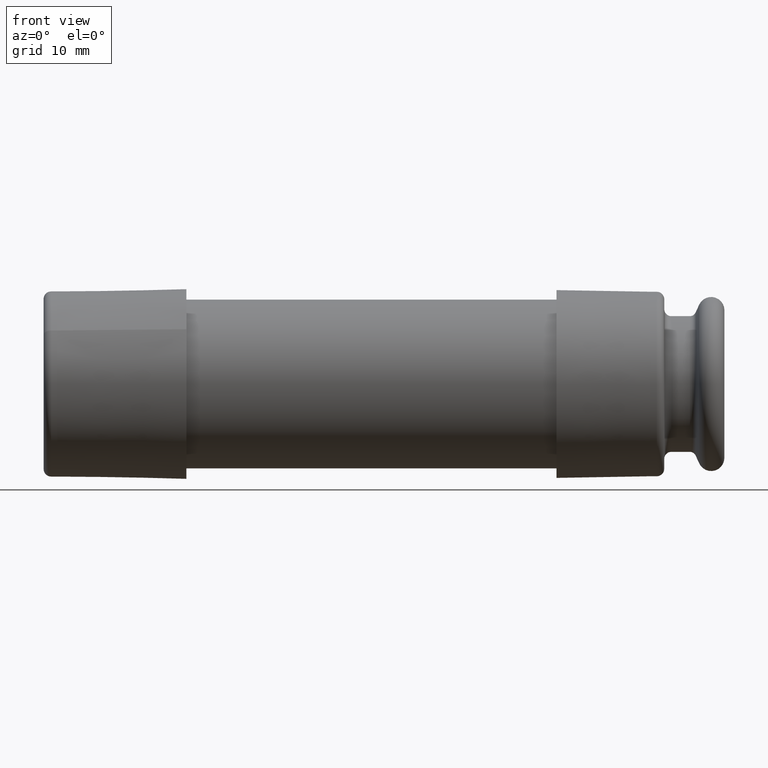
[diagram: clean part render]
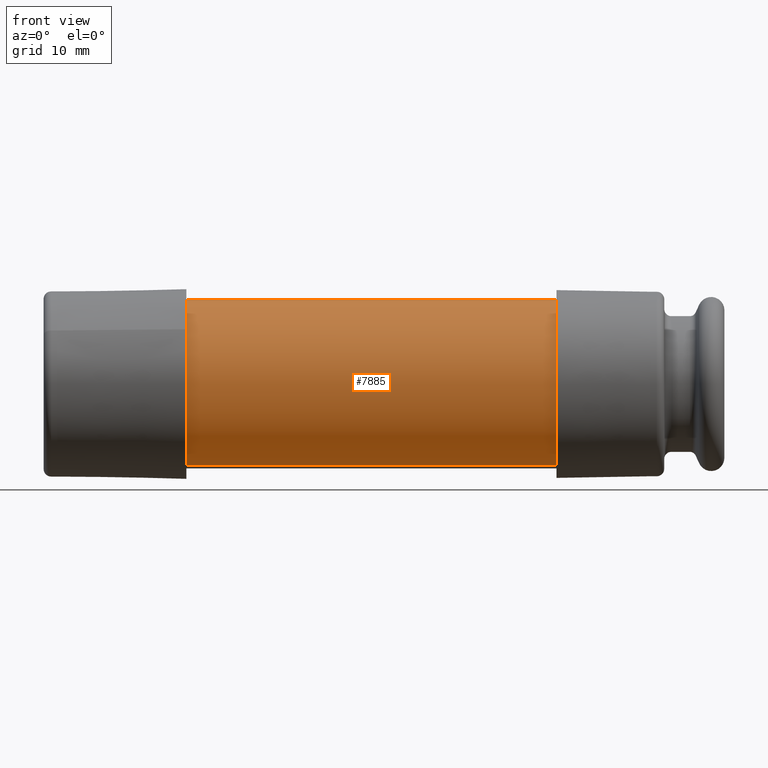
[diagram: same view with one face highlighted and labeled with its STEP entity id]
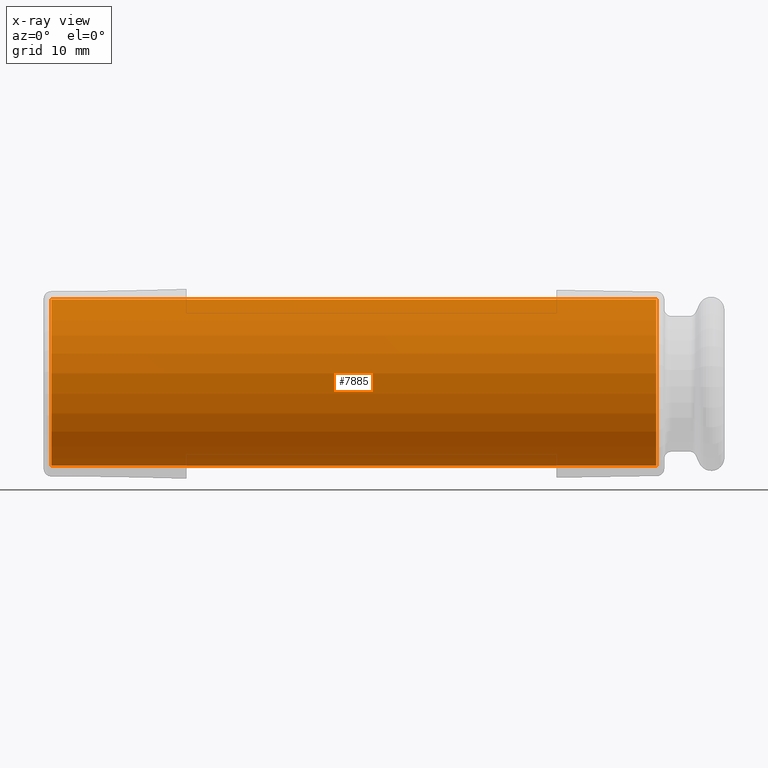
[diagram: x-ray of the same camera — body ghosted, the highlighted face saturated]
A machine part, front view. The second image highlights one B-rep face of the part: STEP entity #7885.
The next image is the same camera in x-ray: the body ghosted, the highlighted face saturated — about 0% of this face is hidden behind the body in this view.
In plain terms, the highlighted cylindrical surface (partial cylindrical patch) has radius 9.4488 mm, axis along (1, 0, -0).
Its self-contained STEP definition (entity closure, byte-faithful):
#63 = EDGE_LOOP ( 'NONE', ( #12054, #12111, #5955, #10532 ) ) ;
#562 = EDGE_CURVE ( 'NONE', #8559, #10121, #1856, .T. ) ;
#740 = VERTEX_POINT ( 'NONE', #11358 ) ;
#1294 = DIRECTION ( 'NONE',  ( -1.000000000000000000, -1.700911416085008300E-016, 6.808368128483539900E-017 ) ) ;
#1437 = DIRECTION ( 'NONE',  ( 0.0000000000000000000, -0.2444930187642919100, -0.9696510525831050200 ) ) ;
#1478 = CARTESIAN_POINT ( 'NONE',  ( -1.220258279986952100, -0.09095140298031677300, -0.3607101915609152200 ) ) ;
#1504 = CARTESIAN_POINT ( 'NONE',  ( 1.445741720013047800, 0.09095140298031671700, 0.3607101915609149400 ) ) ;
#1799 = AXIS2_PLACEMENT_3D ( 'NONE', #3389, #6702, #6647 ) ;
#1856 = LINE ( 'NONE', #1478, #4349 ) ;
#3341 = DIRECTION ( 'NONE',  ( -1.000000000000000000, -1.700911416085008300E-016, 6.808368128483539900E-017 ) ) ;
#3389 = CARTESIAN_POINT ( 'NONE',  ( -1.220258279986952100, -1.107249231173536100E-016, 0.0000000000000000000 ) ) ;
#3473 = LINE ( 'NONE', #10104, #6567 ) ;
#4239 = CARTESIAN_POINT ( 'NONE',  ( 1.445741720013047800, 3.427380604109095900E-016, -1.815110943053711600E-016 ) ) ;
#4349 = VECTOR ( 'NONE', #9917, 39.37007874015748100 ) ;
#4926 = EDGE_CURVE ( 'NONE', #10121, #11726, #9823, .T. ) ;
#5680 = EDGE_CURVE ( 'NONE', #740, #11726, #3473, .T. ) ;
#5955 = ORIENTED_EDGE ( 'NONE', *, *, #4926, .T. ) ;
#6567 = VECTOR ( 'NONE', #8286, 39.37007874015748100 ) ;
#6647 = DIRECTION ( 'NONE',  ( 0.0000000000000000000, 0.2444930187642919100, 0.9696510525831050200 ) ) ;
#6702 = DIRECTION ( 'NONE',  ( 1.000000000000000000, 1.700911416085008300E-016, -6.808368128483539900E-017 ) ) ;
#7158 = CYLINDRICAL_SURFACE ( 'NONE', #1799, 0.3720000000000001600 ) ;
#7488 = CIRCLE ( 'NONE', #8057, 0.3720000000000001600 ) ;
#7872 = CARTESIAN_POINT ( 'NONE',  ( -1.220258279986952100, -1.107249231173536100E-016, 0.0000000000000000000 ) ) ;
#7885 = ADVANCED_FACE ( 'NONE', ( #12135 ), #7158, .T. ) ;
#8057 = AXIS2_PLACEMENT_3D ( 'NONE', #7872, #1294, #8822 ) ;
#8286 = DIRECTION ( 'NONE',  ( 1.000000000000000000, 1.700911416085008300E-016, -6.808368128483539900E-017 ) ) ;
#8559 = VERTEX_POINT ( 'NONE', #9365 ) ;
#8822 = DIRECTION ( 'NONE',  ( 0.0000000000000000000, -0.2444930187642919100, -0.9696510525831050200 ) ) ;
#9058 = AXIS2_PLACEMENT_3D ( 'NONE', #4239, #3341, #1437 ) ;
#9365 = CARTESIAN_POINT ( 'NONE',  ( -1.220258279986952100, -0.09095140298031650900, -0.3607101915609152200 ) ) ;
#9823 = CIRCLE ( 'NONE', #9058, 0.3720000000000001600 ) ;
#9917 = DIRECTION ( 'NONE',  ( 1.000000000000000000, 1.700911416085008300E-016, -6.808368128483539900E-017 ) ) ;
#10002 = CARTESIAN_POINT ( 'NONE',  ( 1.445741720013047800, -0.09095140298031652300, -0.3607101915609152700 ) ) ;
#10104 = CARTESIAN_POINT ( 'NONE',  ( -1.220258279986952100, 0.09095140298031652300, 0.3607101915609152200 ) ) ;
#10121 = VERTEX_POINT ( 'NONE', #10002 ) ;
#10334 = EDGE_CURVE ( 'NONE', #8559, #740, #7488, .T. ) ;
#10532 = ORIENTED_EDGE ( 'NONE', *, *, #5680, .F. ) ;
#11358 = CARTESIAN_POINT ( 'NONE',  ( -1.220258279986952100, 0.09095140298031674500, 0.3607101915609150500 ) ) ;
#11726 = VERTEX_POINT ( 'NONE', #1504 ) ;
#12054 = ORIENTED_EDGE ( 'NONE', *, *, #10334, .F. ) ;
#12111 = ORIENTED_EDGE ( 'NONE', *, *, #562, .T. ) ;
#12135 = FACE_OUTER_BOUND ( 'NONE', #63, .T. ) ;